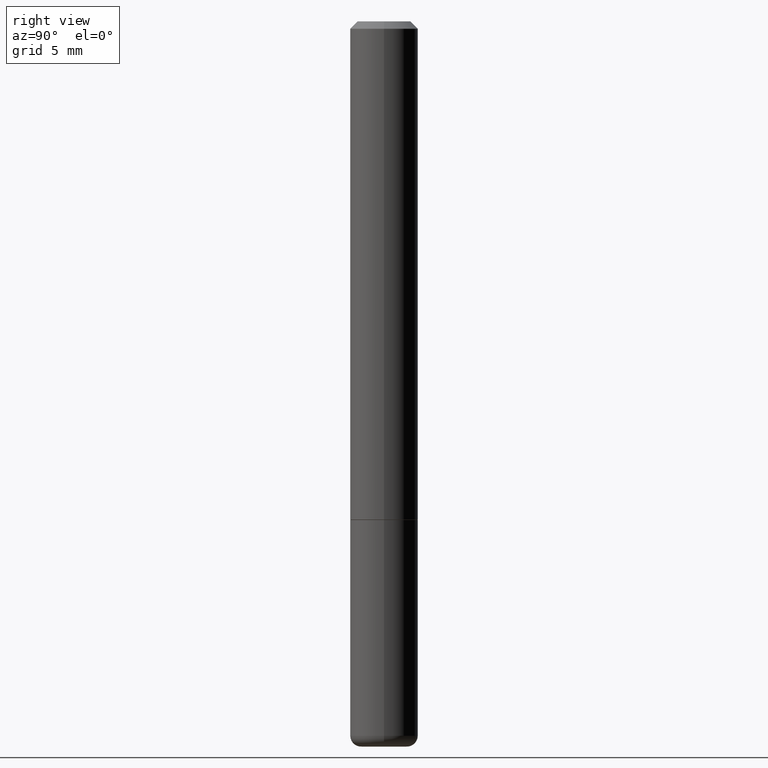
[diagram: clean part render]
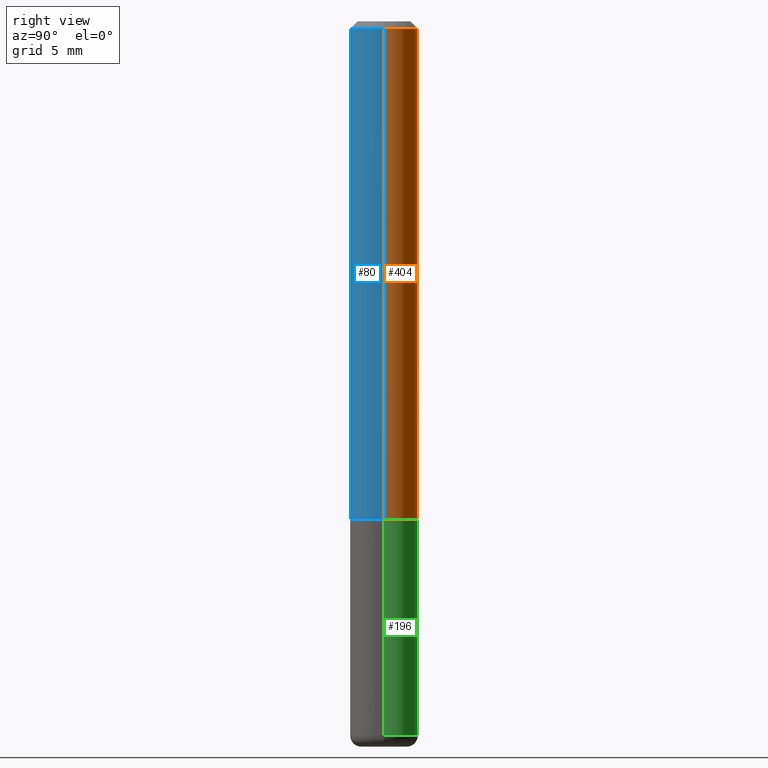
[diagram: same view with three faces highlighted in distinct colors, each labeled with its STEP entity id]
A machine part, right view with three faces highlighted in distinct colors.
Their STEP definitions:

[orange] entity #404 — the highlighted cylindrical surface (edge-blend (fillet) strip) has radius 2.3812 mm, axis along (-0, 0, 1).
#11 = CARTESIAN_POINT ( 'NONE',  ( 0.09374999999999981959, -7.130013140679429031E-16, -0.02000000000000004205 ) ) ;
#14 = VERTEX_POINT ( 'NONE', #67 ) ;
#28 = CARTESIAN_POINT ( 'NONE',  ( -0.09374999999999988898, 6.661338147750931354E-16, -4.611501647113968390E-30 ) ) ;
#33 = AXIS2_PLACEMENT_3D ( 'NONE', #225, #262, #420 ) ;
#34 = AXIS2_PLACEMENT_3D ( 'NONE', #107, #382, #71 ) ;
#50 = EDGE_CURVE ( 'NONE', #121, #105, #342, .T. ) ;
#54 = CIRCLE ( 'NONE', #33, 0.09374999999999997224 ) ;
#61 = ORIENTED_EDGE ( 'NONE', *, *, #50, .T. ) ;
#67 = CARTESIAN_POINT ( 'NONE',  ( 0.09374999999999997224, -5.451948110603567849E-15, -1.373999999999999666 ) ) ;
#71 = DIRECTION ( 'NONE',  ( 1.000000000000000000, -6.982962677686267499E-15, 0.000000000000000000 ) ) ;
#75 = VECTOR ( 'NONE', #316, 39.37007874015748143 ) ;
#86 = DIRECTION ( 'NONE',  ( -2.445468806185136877E-29, 3.491481338843145188E-15, 1.000000000000000000 ) ) ;
#88 = DIRECTION ( 'NONE',  ( -2.445468806185136597E-29, 3.491481338843145583E-15, 1.000000000000000000 ) ) ;
#102 = CARTESIAN_POINT ( 'NONE',  ( -0.09374999999999981959, 5.848231242562232198E-16, -0.02000000000000004205 ) ) ;
#105 = VERTEX_POINT ( 'NONE', #102 ) ;
#107 = CARTESIAN_POINT ( 'NONE',  ( 4.890937612370283668E-31, -6.982962677686305168E-17, -0.02000000000000004205 ) ) ;
#110 = DIRECTION ( 'NONE',  ( 1.000000000000000000, -6.982962677686265133E-15, 4.876176775795935793E-29 ) ) ;
#112 = EDGE_CURVE ( 'NONE', #356, #105, #299, .T. ) ;
#121 = VERTEX_POINT ( 'NONE', #440 ) ;
#129 = EDGE_LOOP ( 'NONE', ( #438, #61, #237, #167 ) ) ;
#166 = AXIS2_PLACEMENT_3D ( 'NONE', #287, #88, #110 ) ;
#167 = ORIENTED_EDGE ( 'NONE', *, *, #177, .F. ) ;
#177 = EDGE_CURVE ( 'NONE', #14, #356, #288, .T. ) ;
#203 = EDGE_CURVE ( 'NONE', #14, #121, #54, .T. ) ;
#225 = CARTESIAN_POINT ( 'NONE',  ( 3.360074139698376657E-29, -4.797295359570480345E-15, -1.373999999999999666 ) ) ;
#234 = FACE_OUTER_BOUND ( 'NONE', #129, .T. ) ;
#237 = ORIENTED_EDGE ( 'NONE', *, *, #112, .F. ) ;
#262 = DIRECTION ( 'NONE',  ( -2.445468806185136597E-29, 3.491481338843145583E-15, 1.000000000000000000 ) ) ;
#283 = CYLINDRICAL_SURFACE ( 'NONE', #166, 0.09374999999999988898 ) ;
#287 = CARTESIAN_POINT ( 'NONE',  ( 0.000000000000000000, 0.000000000000000000, 0.000000000000000000 ) ) ;
#288 = LINE ( 'NONE', #354, #391 ) ;
#299 = CIRCLE ( 'NONE', #34, 0.09374999999999981959 ) ;
#316 = DIRECTION ( 'NONE',  ( -2.445468806185136877E-29, 3.491481338843145188E-15, 1.000000000000000000 ) ) ;
#342 = LINE ( 'NONE', #28, #75 ) ;
#354 = CARTESIAN_POINT ( 'NONE',  ( 0.09374999999999988898, -6.546527510330866166E-16, 4.571415727308684201E-30 ) ) ;
#356 = VERTEX_POINT ( 'NONE', #11 ) ;
#382 = DIRECTION ( 'NONE',  ( -2.445468806185136597E-29, 3.491481338843145583E-15, 1.000000000000000000 ) ) ;
#391 = VECTOR ( 'NONE', #86, 39.37007874015748143 ) ;
#404 = ADVANCED_FACE ( 'NONE', ( #234 ), #283, .T. ) ;
#420 = DIRECTION ( 'NONE',  ( 1.000000000000000000, -6.982962677686264344E-15, 0.000000000000000000 ) ) ;
#438 = ORIENTED_EDGE ( 'NONE', *, *, #203, .T. ) ;
#440 = CARTESIAN_POINT ( 'NONE',  ( -0.09374999999999997224, -1.767428678398575728E-15, -1.373999999999999666 ) ) ;

[blue] entity #80 — the highlighted cylindrical surface (edge-blend (fillet) strip) has radius 2.3812 mm, axis along (-0, 0, 1).
#5 = CARTESIAN_POINT ( 'NONE',  ( 4.890937612370283668E-31, -6.982962677686305168E-17, -0.02000000000000004205 ) ) ;
#11 = CARTESIAN_POINT ( 'NONE',  ( 0.09374999999999981959, -7.130013140679429031E-16, -0.02000000000000004205 ) ) ;
#14 = VERTEX_POINT ( 'NONE', #67 ) ;
#28 = CARTESIAN_POINT ( 'NONE',  ( -0.09374999999999988898, 6.661338147750931354E-16, -4.611501647113968390E-30 ) ) ;
#50 = EDGE_CURVE ( 'NONE', #121, #105, #342, .T. ) ;
#67 = CARTESIAN_POINT ( 'NONE',  ( 0.09374999999999997224, -5.451948110603567849E-15, -1.373999999999999666 ) ) ;
#75 = VECTOR ( 'NONE', #316, 39.37007874015748143 ) ;
#80 = ADVANCED_FACE ( 'NONE', ( #173 ), #314, .T. ) ;
#85 = DIRECTION ( 'NONE',  ( -2.445468806185136597E-29, 3.491481338843145583E-15, 1.000000000000000000 ) ) ;
#86 = DIRECTION ( 'NONE',  ( -2.445468806185136877E-29, 3.491481338843145188E-15, 1.000000000000000000 ) ) ;
#99 = EDGE_LOOP ( 'NONE', ( #282, #194, #414, #202 ) ) ;
#102 = CARTESIAN_POINT ( 'NONE',  ( -0.09374999999999981959, 5.848231242562232198E-16, -0.02000000000000004205 ) ) ;
#105 = VERTEX_POINT ( 'NONE', #102 ) ;
#109 = CIRCLE ( 'NONE', #371, 0.09374999999999997224 ) ;
#121 = VERTEX_POINT ( 'NONE', #440 ) ;
#169 = CIRCLE ( 'NONE', #417, 0.09374999999999981959 ) ;
#173 = FACE_OUTER_BOUND ( 'NONE', #99, .T. ) ;
#177 = EDGE_CURVE ( 'NONE', #14, #356, #288, .T. ) ;
#189 = CARTESIAN_POINT ( 'NONE',  ( 3.360074139698376657E-29, -4.797295359570480345E-15, -1.373999999999999666 ) ) ;
#190 = EDGE_CURVE ( 'NONE', #121, #14, #109, .T. ) ;
#194 = ORIENTED_EDGE ( 'NONE', *, *, #190, .T. ) ;
#202 = ORIENTED_EDGE ( 'NONE', *, *, #220, .F. ) ;
#220 = EDGE_CURVE ( 'NONE', #105, #356, #169, .T. ) ;
#278 = CARTESIAN_POINT ( 'NONE',  ( 0.000000000000000000, 0.000000000000000000, 0.000000000000000000 ) ) ;
#281 = DIRECTION ( 'NONE',  ( 1.000000000000000000, -6.982962677686265133E-15, 4.876176775795935793E-29 ) ) ;
#282 = ORIENTED_EDGE ( 'NONE', *, *, #50, .F. ) ;
#288 = LINE ( 'NONE', #354, #391 ) ;
#314 = CYLINDRICAL_SURFACE ( 'NONE', #425, 0.09374999999999988898 ) ;
#316 = DIRECTION ( 'NONE',  ( -2.445468806185136877E-29, 3.491481338843145188E-15, 1.000000000000000000 ) ) ;
#325 = DIRECTION ( 'NONE',  ( -2.445468806185136597E-29, 3.491481338843145583E-15, 1.000000000000000000 ) ) ;
#342 = LINE ( 'NONE', #28, #75 ) ;
#354 = CARTESIAN_POINT ( 'NONE',  ( 0.09374999999999988898, -6.546527510330866166E-16, 4.571415727308684201E-30 ) ) ;
#356 = VERTEX_POINT ( 'NONE', #11 ) ;
#357 = DIRECTION ( 'NONE',  ( 1.000000000000000000, -6.982962677686267499E-15, 0.000000000000000000 ) ) ;
#371 = AXIS2_PLACEMENT_3D ( 'NONE', #189, #325, #389 ) ;
#389 = DIRECTION ( 'NONE',  ( 1.000000000000000000, -6.982962677686264344E-15, 0.000000000000000000 ) ) ;
#391 = VECTOR ( 'NONE', #86, 39.37007874015748143 ) ;
#411 = DIRECTION ( 'NONE',  ( -2.445468806185136597E-29, 3.491481338843145583E-15, 1.000000000000000000 ) ) ;
#414 = ORIENTED_EDGE ( 'NONE', *, *, #177, .T. ) ;
#417 = AXIS2_PLACEMENT_3D ( 'NONE', #5, #85, #357 ) ;
#425 = AXIS2_PLACEMENT_3D ( 'NONE', #278, #411, #281 ) ;
#440 = CARTESIAN_POINT ( 'NONE',  ( -0.09374999999999997224, -1.767428678398575728E-15, -1.373999999999999666 ) ) ;

[green] entity #196 — the highlighted cylindrical surface (edge-blend (fillet) strip) has radius 2.3812 mm, axis along (-0, 0, 1).
#6 = CARTESIAN_POINT ( 'NONE',  ( 0.09375000000000001388, -5.455439591942412434E-15, -1.375000000000000000 ) ) ;
#7 = DIRECTION ( 'NONE',  ( -2.445468806185136597E-29, 3.491481338843145583E-15, 1.000000000000000000 ) ) ;
#10 = VERTEX_POINT ( 'NONE', #58 ) ;
#22 = CARTESIAN_POINT ( 'NONE',  ( -0.09374999999999991673, 6.661338147750933326E-16, -4.611501647113969791E-30 ) ) ;
#26 = EDGE_CURVE ( 'NONE', #328, #10, #400, .T. ) ;
#31 = CARTESIAN_POINT ( 'NONE',  ( -0.09375000000000001388, -5.173440498747517472E-15, -1.375000000000000000 ) ) ;
#49 = EDGE_LOOP ( 'NONE', ( #261, #68, #264, #138 ) ) ;
#58 = CARTESIAN_POINT ( 'NONE',  ( -0.09374999999999984734, -5.173440498747517472E-15, -1.970041113957363033 ) ) ;
#62 = EDGE_CURVE ( 'NONE', #10, #96, #339, .T. ) ;
#65 = AXIS2_PLACEMENT_3D ( 'NONE', #370, #211, #340 ) ;
#68 = ORIENTED_EDGE ( 'NONE', *, *, #62, .T. ) ;
#74 = CARTESIAN_POINT ( 'NONE',  ( 3.362519608504562260E-29, -4.800786840909324930E-15, -1.375000000000000000 ) ) ;
#78 = DIRECTION ( 'NONE',  ( -2.445468806185136877E-29, 3.491481338843145188E-15, 1.000000000000000000 ) ) ;
#96 = VERTEX_POINT ( 'NONE', #31 ) ;
#103 = CIRCLE ( 'NONE', #295, 0.09375000000000001388 ) ;
#115 = CARTESIAN_POINT ( 'NONE',  ( 0.09374999999999991673, -6.546527510330869125E-16, 4.571415727308685602E-30 ) ) ;
#126 = EDGE_CURVE ( 'NONE', #250, #96, #103, .T. ) ;
#138 = ORIENTED_EDGE ( 'NONE', *, *, #263, .F. ) ;
#174 = DIRECTION ( 'NONE',  ( -2.445468806185136877E-29, 3.491481338843145188E-15, 1.000000000000000000 ) ) ;
#196 = ADVANCED_FACE ( 'NONE', ( #232 ), #293, .T. ) ;
#200 = AXIS2_PLACEMENT_3D ( 'NONE', #259, #7, #422 ) ;
#211 = DIRECTION ( 'NONE',  ( -2.445468806185136597E-29, 3.491481338843145583E-15, 1.000000000000000000 ) ) ;
#217 = DIRECTION ( 'NONE',  ( -2.445468806185136597E-29, 3.491481338843145583E-15, 1.000000000000000000 ) ) ;
#232 = FACE_OUTER_BOUND ( 'NONE', #49, .T. ) ;
#250 = VERTEX_POINT ( 'NONE', #6 ) ;
#259 = CARTESIAN_POINT ( 'NONE',  ( 0.000000000000000000, 0.000000000000000000, 0.000000000000000000 ) ) ;
#261 = ORIENTED_EDGE ( 'NONE', *, *, #26, .T. ) ;
#263 = EDGE_CURVE ( 'NONE', #328, #250, #296, .T. ) ;
#264 = ORIENTED_EDGE ( 'NONE', *, *, #126, .F. ) ;
#270 = CARTESIAN_POINT ( 'NONE',  ( 0.09374999999999984734, -7.533014537168982211E-15, -1.970041113957363033 ) ) ;
#293 = CYLINDRICAL_SURFACE ( 'NONE', #200, 0.09374999999999991673 ) ;
#295 = AXIS2_PLACEMENT_3D ( 'NONE', #74, #217, #394 ) ;
#296 = LINE ( 'NONE', #115, #344 ) ;
#328 = VERTEX_POINT ( 'NONE', #270 ) ;
#339 = LINE ( 'NONE', #22, #352 ) ;
#340 = DIRECTION ( 'NONE',  ( 1.000000000000000000, -6.982962677686264344E-15, 0.000000000000000000 ) ) ;
#344 = VECTOR ( 'NONE', #78, 39.37007874015748143 ) ;
#352 = VECTOR ( 'NONE', #174, 39.37007874015748143 ) ;
#370 = CARTESIAN_POINT ( 'NONE',  ( 4.817674091084949095E-29, -6.878361786135895495E-15, -1.970041113957363033 ) ) ;
#394 = DIRECTION ( 'NONE',  ( 1.000000000000000000, -6.982962677686261189E-15, 0.000000000000000000 ) ) ;
#400 = CIRCLE ( 'NONE', #65, 0.09374999999999984734 ) ;
#422 = DIRECTION ( 'NONE',  ( 1.000000000000000000, -6.982962677686266711E-15, 4.876176775795935793E-29 ) ) ;